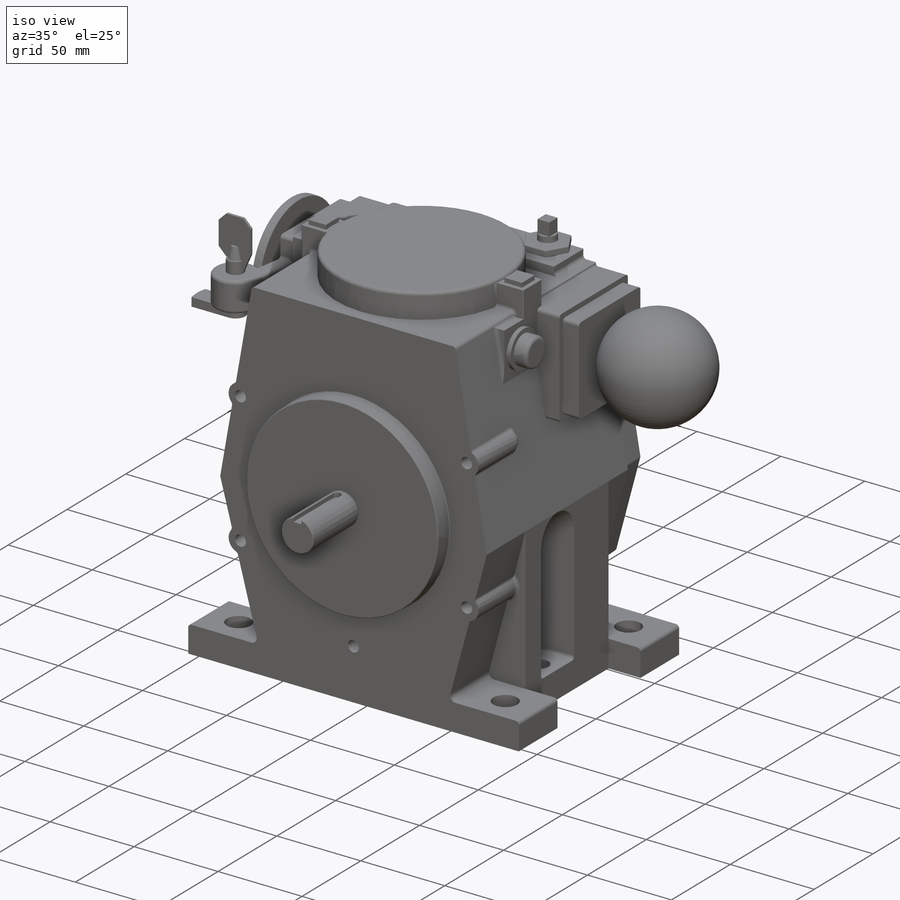
[diagram: iso view]
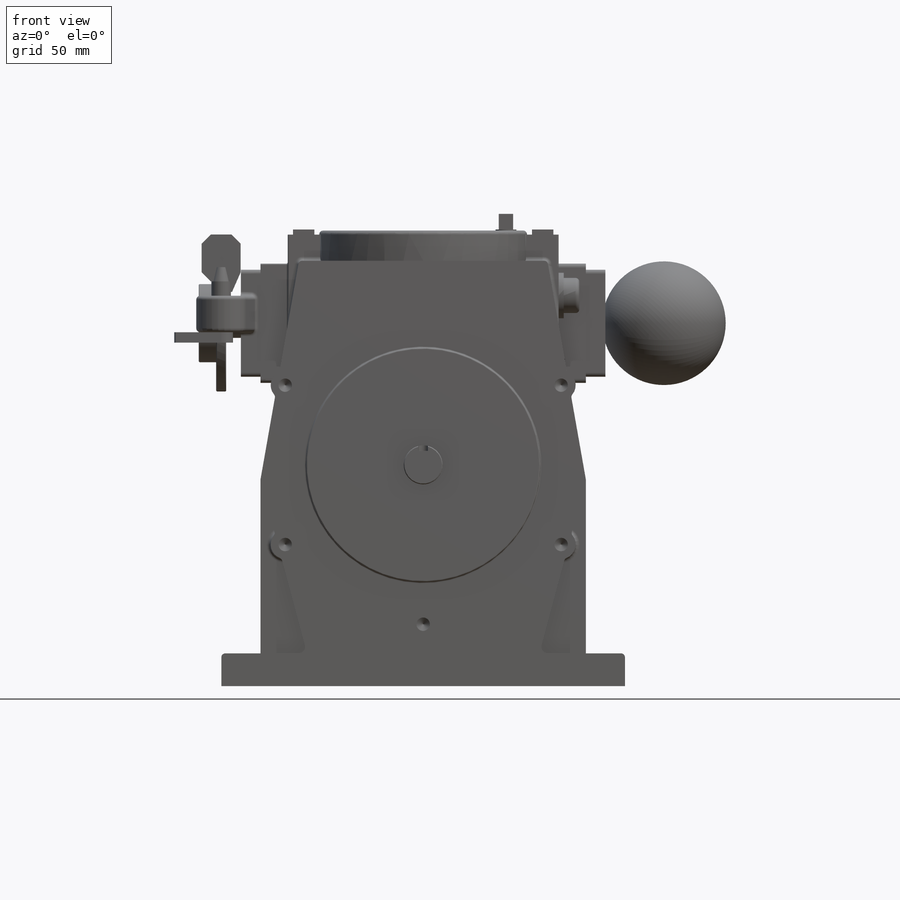
[diagram: front view]
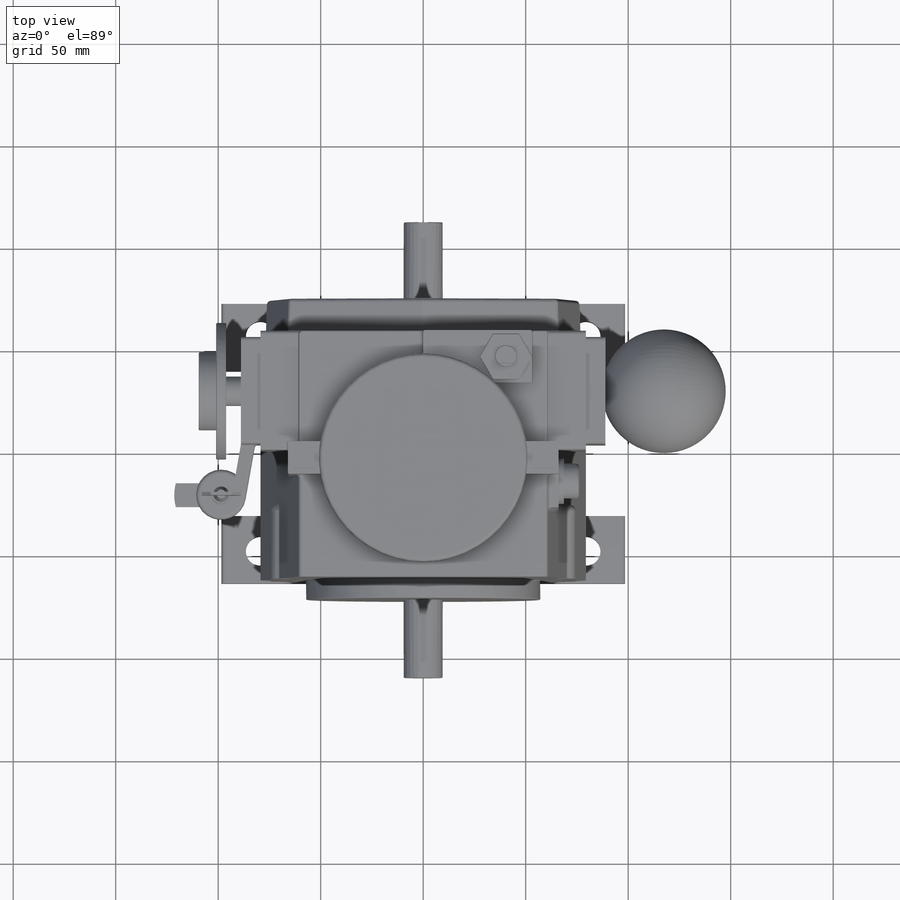
[diagram: top view]
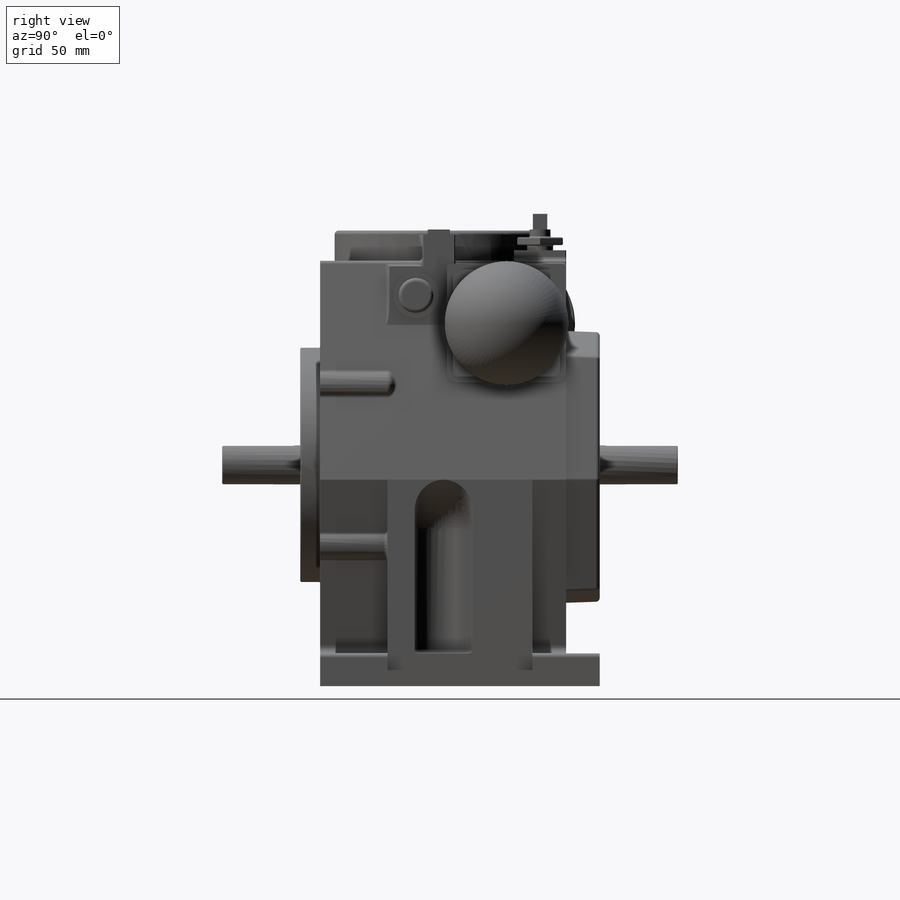
[diagram: right view]
SOLIDWORKS PART (.sldprt)
format: sldprt  version: not decoded by parser v0  size: 1,611,776 bytes
history: native  units: mm
features: sketch x42, extrude x26, plane x14, thread x5, mirror x5, cut_extrude x5, hole x3, fillet x3, chamfer x3, revolve x2, material x1, cut_revolve x1 (+16 scaffold rows collapsed)
feature tree (126):
  scaffold x16  (default folders/planes/origin — collapsed)
  material  "Material <not specified>"
  sketch  "A"  dims[D1=19.05mm]
  extrude  "H"  Depth=222.25mm
  plane  "K"  Offset=38.1mm
  sketch  "B dia"  dims[D1=114.3mm]
  extrude  "X"  Depth=9.652mm
  plane  "M"  Offset=107.95mm
  plane  "W"  Offset=177.038mm
  sketch  "Cross section"  dims[c1.D5=12.7mm c1.D8=69.85mm c1.D1=196.85mm c1.D2=16.002mm c1.D3=~39.052881mm c2.D3=5.0deg c2.D4=~23.57015mm c3.D4=92.5deg c3.D5=7.239mm c3.D6=~5.547512mm c4.D6=75.0deg c4.D7=133.35mm c5.D7=80.0deg c5.D9=114.3mm c5.D3=107.95mm c5.D4=137.16mm c6.D9=30.48mm c6.D4=207.518mm c6.D10=19.05mm c6.D3=158.75mm]
  extrude  "K from end"  Depth=38.1mm
  hole  "5/16-18 Tapped Hole1"  Diameter=6.5278mm Depth=26.162mm
  sketch  "Sketch5"  dims[D1=155.448mm D2=6.0]
  sketch  "Sketch4"  dims[hole-wizard template sketch: 47 standard entries collapsed; hole parameters kept: c15.Tap Drill Depth=26.162mm c15.D3=~14.816244mm c15.Drill Angle=118.0deg]
  thread  "Hole Thread1"  Diameter=19.05mm  [1 undecoded]
  thread  "Hole Thread2"  Diameter=19.05mm  [1 undecoded]
  thread  "Hole Thread3"  Diameter=19.05mm  [1 undecoded]
  thread  "Hole Thread4"  Diameter=19.05mm  [1 undecoded]
  thread  "Hole Thread5"  Diameter=19.05mm  [1 undecoded]
  fillet  "Fillet1"  Radius=3.175mm
  plane  "Z"  Offset=83.566mm
  plane  "Plane2"
  sketch  "Sketch6"  dims[D1=1.397mm D2=44.45mm]
  extrude  "Boss-Extrude1"  [1 undecoded]
  sketch  "Sketch7"  dims[D1=2.9845mm]
  extrude  "Boss-Extrude2"  Depth=9.525mm
  mirror  "Mirror1"
  plane  "J"  Offset=147.574mm
  sketch  "Sketch8"  dims[D1=60.325mm D2=89.4334mm D3=13.716mm]
  revolve  "Revolve1"  Angle=360deg
  plane  "I"  Offset=257.048mm
  sketch  "Sketch9"  dims[D1=14.2875mm]
  extrude  "Boss-Extrude3"  Depth=7.239mm
  sketch  "Sketch10"  dims[D1=66.675mm]
  extrude  "Boss-Extrude4"  Depth=4.826mm
  sketch  "Sketch11"  dims[D1=38.1mm]
  extrude  "Boss-Extrude5"  [1 undecoded]
  plane  "L"  Offset=222.25mm
  sketch  "Sketch12"  dims[D2=101.6mm D1=33.02mm]
  extrude  "Boss-Extrude6"  [1 undecoded]
  sketch  "Sketch13"  dims[c1.D3=~40.674934mm c2.D3=85.0deg c2.D4=40.64mm c2.D5=3.81mm c2.D6=~121.630065mm c3.D6=5.0deg c4.D6=~121.630065mm c5.D6=2.0deg c5.D1=0.0mm c5.D2=2.54mm]
  cut_extrude  "Cut-Extrude1"  [1 undecoded]
  sketch  "Sketch38"  dims[D2=12.7mm D1=0.0mm]
  cut_extrude  "Cut-Extrude4"  [1 undecoded]
  sketch  "Sketch15"  dims[c1.D2=1.5875mm c1.D1=4.7498mm c2.D2=4.6355mm]
  cut_extrude  "Cut-Extrude2"  Depth=12.446mm
  plane  "R"  Offset=53.848mm
  plane  "E"  Offset=104.902mm
  plane  "T"  Offset=60.452mm
  plane  ".5 U"  Offset=68.326mm
  plane  ".5 D"  Offset=79.375mm
  hole  "9/16 (0.5625) Diameter Hole1"  Diameter=14.2875mm Depth=16.002mm
  sketch  "Sketch18"
  sketch  "Sketch19"  dims[hole-wizard template sketch: 60 standard entries collapsed; hole parameters kept: c18.Thru Hole Depth=16.002mm]
  sketch  "Sketch20"  dims[c1.D1=19.6342mm c1.D2=16.7132mm c2.D1=8.6106mm c3.D1=90.0deg c4.D1=9.6266mm c4.D2=17.145mm c5.D1=14.2875mm c6.D1=90.0deg]
  extrude  "Boss-Extrude7"  Depth=25.146mm
  sketch  "Sketch21"
  cut_extrude  "Cut-Extrude3"  [1 undecoded]
  mirror  "Mirror2"
  sketch  "Sketch40"  dims[D1=25.4mm D2=28.194mm]
  cut_revolve  "Cut-Revolve2"  Angle=180deg
  sketch  "Sketch44"
  cut_extrude  "Cut-Extrude6"  [1 undecoded]
  sketch  "Sketch48"  dims[D1=0.0mm]
  sketch  "Sketch49"  dims[D1=12.7mm D2=~19.346026mm]
  mirror  "Mirror6"
  hole  "7/16 (0.4375) Diameter Hole1"  Diameter=11.176mm Depth=16.002mm
  sketch  "Sketch51"
  sketch  "Sketch50"  dims[hole-wizard template sketch: 59 standard entries collapsed; hole parameters kept: c18.Thru Hole Dia.=11.176mm c18.Thru Hole Depth=16.002mm]
  sketch  "Sketch22"  dims[D1=15.875mm D2=15.875mm]
  extrude  "Boss-Extrude8"  Depth=12.7mm
  sketch  "Sketch39"  dims[D1=3.81mm]
  extrude  "Boss-Extrude25"  [1 undecoded]
  sketch  "Sketch52"  dims[D1=0.0mm]
  revolve  "Revolve2"  Angle=180deg
  mirror  "Mirror7"
  sketch  "Sketch23"  dims[D1=2.54mm]
  extrude  "Boss-Extrude9"  Depth=2.54mm
  mirror  "Mirror3"
  sketch  "Sketch24"  dims[c1.D1=10.16mm c1.D2=28.575mm c2.D1=16.129mm]
  extrude  "Boss-Extrude10"  Depth=15.24mm
  sketch  "Sketch25"  dims[c1.D3=22.225mm c1.D1=8.89mm c1.D2=15.24mm c2.D1=3.175mm]
  extrude  "Boss-Extrude11"  Depth=2.54mm
  sketch  "Sketch26"  dims[D1=2.54mm]
  extrude  "Boss-Extrude12"  Depth=7.62mm
  sketch  "Sketch28"  dims[c1.D1=53.34mm c1.D2=12.7mm c1.D3=25.4mm c2.D2=12.7mm]
  extrude  "Boss-Extrude13"  Depth=5.08mm
  sketch  "Sketch29"  dims[c1.D1=12.7mm c1.D2=12.7mm c1.D3=12.7mm c2.D2=12.7mm c2.D3=12.7mm]
  extrude  "Boss-Extrude14"  Depth=2.54mm
  sketch  "Sketch30"  dims[D1=22.225mm]
  extrude  "Boss-Extrude15"  Depth=3.81mm
  sketch  "Sketch31"  dims[D1=10.16mm]
  extrude  "Boss-Extrude16"  Depth=3.81mm
  sketch  "Sketch32"  dims[D1=6.985mm]
  extrude  "Boss-Extrude17"  Depth=7.62mm
  sketch  "Sketch33"  dims[c1.D1=10.795mm c1.D3=~15.367983mm c1.D2=~20.769594mm c2.D2=10.0deg c2.D3=5.08mm c2.D1=5.08mm c3.D3=2.54mm]
  extrude  "Boss-Extrude18"  Depth=17.78mm
  sketch  "Sketch34"  dims[D1=9.525mm]
  extrude  "Boss-Extrude19"  Depth=6.985mm
  sketch  "Sketch35"  dims[D1=7.62mm]
  extrude  "Boss-Extrude20"  Depth=6.985mm
  plane  "Plane3"
  sketch  "Sketch36"  dims[c1.D1=19.05mm c1.D2=22.86mm c1.D3=~6.438574mm c2.D3=45.0deg c2.D4=~4.006476mm c3.D4=45.0deg c3.D5=10.16mm c3.D6=5.08mm c3.D7=1.524mm]
  extrude  "Boss-Extrude23"  Depth=1.524mm
  sketch  "Sketch37"  dims[D1=6.35mm D2=22.86mm]
  extrude  "Boss-Extrude24"  Depth=5.08mm
  chamfer  "Chamfer1"  Distance=0.381mm Angle=45deg
  chamfer  "Chamfer2"  Distance=0.381mm Angle=45deg
  chamfer  "Chamfer3"  Distance=0.381mm Angle=45deg
  fillet  "Fillet2"  Radius=1.905mm
  fillet  "Fillet3"  Radius=0.635mm
decode coverage: 78 of 95 modeling features carry decoded parameters
note: ~ marks probable driven/reference dimensions
note: 13 parameter values undecoded
summary: no parameter record found for 8 features
note: suppression state not decoded; provenance and decode notes live in map.json
